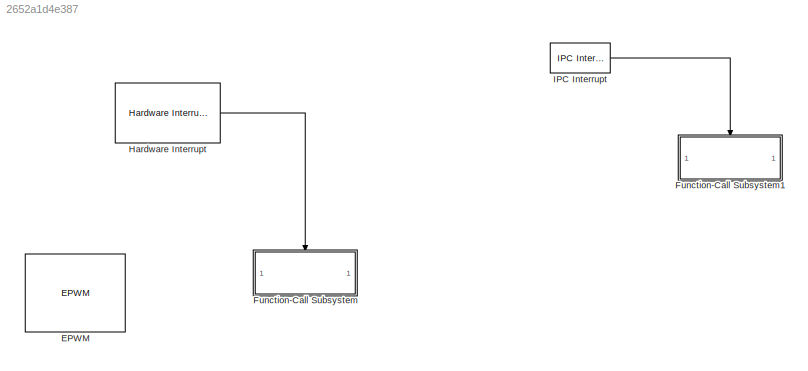
MODEL slx_2652a1d4e387
KIND model
CONFIG AbsTol = auto
CONFIG EnableMultiTasking = off
CONFIG FixedStep = auto
CONFIG MaxStep = auto
CONFIG MinStep = auto
CONFIG RelTol = 1e-3
CONFIG SampleTimeConstraint = Unconstrained
CONFIG SolverName = FixedStepAuto
CONFIG StartTime = 0.0
CONFIG StopTime = 10.0
BLOCK [Reference] EPWM  REF=peripheral_library_blocks_am263px/EPWM
  SourceBlock = peripheral_library_blocks_am263px/EPWM
  SourceType = EPWM_AM263PX
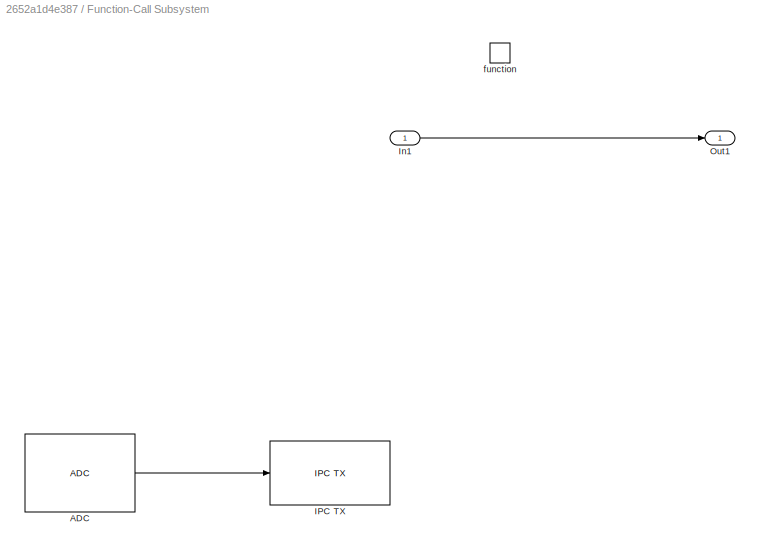
BLOCK [SubSystem] Function-Call Subsystem
  TreatAsAtomicUnit = on
BLOCK [Reference] Function-Call Subsystem/ADC  REF=peripheral_library_blocks_am263x/ADC
  SourceBlock = peripheral_library_blocks_am263x/ADC
  SourceType = ADC_AM263X
BLOCK [Reference] Function-Call Subsystem/IPC TX  REF=peripheral_library_blocks_am263px/IPC TX
  SourceBlock = peripheral_library_blocks_am263px/IPC TX
  SourceType = IPC_TX_AM263PX
BLOCK [Inport] Function-Call Subsystem/In1
BLOCK [Outport] Function-Call Subsystem/Out1
BLOCK [TriggerPort] Function-Call Subsystem/function
  StatesWhenEnabling = held
  TriggerType = function-call
  VariantControl = (inherit)
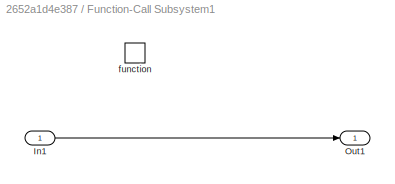
BLOCK [SubSystem] Function-Call Subsystem1
  TreatAsAtomicUnit = on
BLOCK [Inport] Function-Call Subsystem1/In1
BLOCK [Outport] Function-Call Subsystem1/Out1
BLOCK [TriggerPort] Function-Call Subsystem1/function
  StatesWhenEnabling = held
  TriggerType = function-call
  VariantControl = (inherit)
BLOCK [Reference] Hardware Interrupt  REF=HWI_lib/Hardware Interrupt
  SourceBlock = HWI_lib/Hardware Interrupt
  SourceProductName = Embedded Coder Support Package for AM263x - HWI Block
BLOCK [Reference] IPC Interrupt  REF=IPC_HWI_lib/IPC Interrupt
  SourceBlock = IPC_HWI_lib/IPC Interrupt
LINE Function-Call Subsystem/ADC:1 -> Function-Call Subsystem/IPC TX:1
LINE Function-Call Subsystem/In1:1 -> Function-Call Subsystem/Out1:1
LINE Function-Call Subsystem1/In1:1 -> Function-Call Subsystem1/Out1:1
LINE Hardware Interrupt:1 -> Function-Call Subsystem:trigger
LINE IPC Interrupt:1 -> Function-Call Subsystem1:trigger
